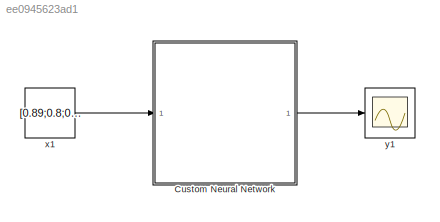
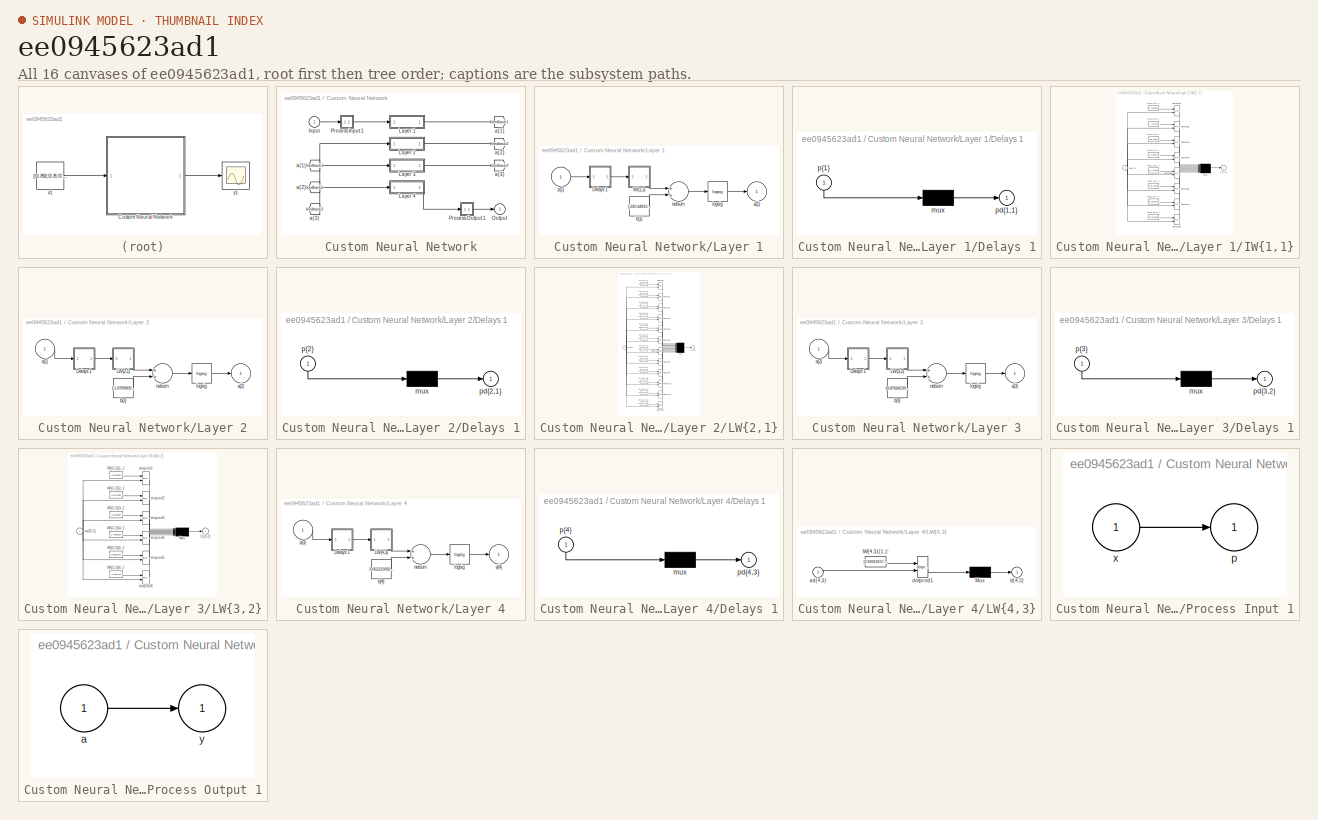
[diagram: thumbnail index - all 16 canvases of the model, root first then tree order]
MODEL slx_ee0945623ad1
KIND model
CONFIG AbsTol = auto
CONFIG FixedStep = auto
CONFIG MaxStep = auto
CONFIG MinStep = auto
CONFIG RelTol = 1e-3
CONFIG SampleTimeConstraint = Unconstrained
CONFIG Solver = VariableStepAuto
CONFIG SolverMode = Auto
CONFIG SolverName = VariableStepAuto
CONFIG StartTime = 0.0
CONFIG StopTime = 10.0
BLOCK [SubSystem] Custom Neural Network
  Ports = [1, 1]
  RequestExecContextInheritance = off
  Variant = off
BLOCK [From] Custom Neural Network/ a{1} 
  GotoTag = feedback1
BLOCK [From] Custom Neural Network/ a{2} 
  GotoTag = feedback2
BLOCK [From] Custom Neural Network/ a{3} 
  GotoTag = feedback3
BLOCK [Inport] Custom Neural Network/Input
  IconDisplay = Port number
  PortDimensions = 3
BLOCK [SubSystem] Custom Neural Network/Layer 1
  Ports = [1, 1]
  RequestExecContextInheritance = off
  Variant = off
BLOCK [SubSystem] Custom Neural Network/Layer 1/Delays 1
  Ports = [1, 1]
  RequestExecContextInheritance = off
  Variant = off
BLOCK [Mux] Custom Neural Network/Layer 1/Delays 1/mux
  Inputs = 1
  Ports = [1, 1]
BLOCK [Outport] Custom Neural Network/Layer 1/Delays 1/pd{1,1}
  IconDisplay = Port number
BLOCK [Inport] Custom Neural Network/Layer 1/Delays 1/p{1}
  IconDisplay = Port number
  PortDimensions = 3
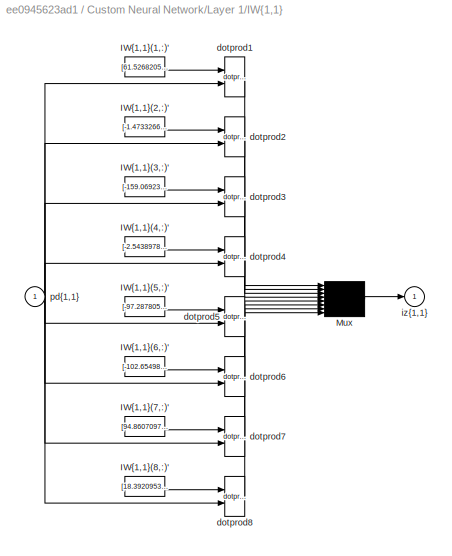
BLOCK [SubSystem] Custom Neural Network/Layer 1/IW{1,1}
  Ports = [1, 1]
  RequestExecContextInheritance = off
  Variant = off
BLOCK [Constant] Custom Neural Network/Layer 1/IW{1,1}/IW{1,1}(1,:)'
  Value = [61.526820548827821;63.251121261727079;7.0095536586086737]
BLOCK [Constant] Custom Neural Network/Layer 1/IW{1,1}/IW{1,1}(2,:)'
  Value = [-1.4733266156592695;26.360917469405571;29.064946161588765]
BLOCK [Constant] Custom Neural Network/Layer 1/IW{1,1}/IW{1,1}(3,:)'
  Value = [-159.06923164373561;17.653194609087425;2.9439221208622945]
BLOCK [Constant] Custom Neural Network/Layer 1/IW{1,1}/IW{1,1}(4,:)'
  Value = [-2.5438978141396698;70.615112491310413;-1.4516150804621986]
BLOCK [Constant] Custom Neural Network/Layer 1/IW{1,1}/IW{1,1}(5,:)'
  Value = [-97.287805807213132;44.331993070514685;15.599299557352101]
BLOCK [Constant] Custom Neural Network/Layer 1/IW{1,1}/IW{1,1}(6,:)'
  Value = [-102.65498229661196;48.502702023806947;-11.579703811891507]
BLOCK [Constant] Custom Neural Network/Layer 1/IW{1,1}/IW{1,1}(7,:)'
  Value = [94.860709755684908;-57.737684640410293;-0.019479715268472923]
BLOCK [Constant] Custom Neural Network/Layer 1/IW{1,1}/IW{1,1}(8,:)'
  Value = [18.392095352258636;47.505854145446015;23.654074037455413]
BLOCK [Mux] Custom Neural Network/Layer 1/IW{1,1}/Mux
  Inputs = 8
  Ports = [8, 1]
BLOCK [Reference] Custom Neural Network/Layer 1/IW{1,1}/dotprod1  REF=neural/Weight Functions/dotprod
  Ports = [2, 1]
  SourceBlock = neural/Weight Functions/dotprod
  SourceType = DOTPROD
BLOCK [Reference] Custom Neural Network/Layer 1/IW{1,1}/dotprod2  REF=neural/Weight Functions/dotprod
  Ports = [2, 1]
  SourceBlock = neural/Weight Functions/dotprod
  SourceType = DOTPROD
BLOCK [Reference] Custom Neural Network/Layer 1/IW{1,1}/dotprod3  REF=neural/Weight Functions/dotprod
  Ports = [2, 1]
  SourceBlock = neural/Weight Functions/dotprod
  SourceType = DOTPROD
BLOCK [Reference] Custom Neural Network/Layer 1/IW{1,1}/dotprod4  REF=neural/Weight Functions/dotprod
  Ports = [2, 1]
  SourceBlock = neural/Weight Functions/dotprod
  SourceType = DOTPROD
BLOCK [Reference] Custom Neural Network/Layer 1/IW{1,1}/dotprod5  REF=neural/Weight Functions/dotprod
  Ports = [2, 1]
  SourceBlock = neural/Weight Functions/dotprod
  SourceType = DOTPROD
BLOCK [Reference] Custom Neural Network/Layer 1/IW{1,1}/dotprod6  REF=neural/Weight Functions/dotprod
  Ports = [2, 1]
  SourceBlock = neural/Weight Functions/dotprod
  SourceType = DOTPROD
BLOCK [Reference] Custom Neural Network/Layer 1/IW{1,1}/dotprod7  REF=neural/Weight Functions/dotprod
  Ports = [2, 1]
  SourceBlock = neural/Weight Functions/dotprod
  SourceType = DOTPROD
BLOCK [Reference] Custom Neural Network/Layer 1/IW{1,1}/dotprod8  REF=neural/Weight Functions/dotprod
  Ports = [2, 1]
  SourceBlock = neural/Weight Functions/dotprod
  SourceType = DOTPROD
BLOCK [Outport] Custom Neural Network/Layer 1/IW{1,1}/iz{1,1}
  IconDisplay = Port number
BLOCK [Inport] Custom Neural Network/Layer 1/IW{1,1}/pd{1,1}
  IconDisplay = Port number
  PortDimensions = 3
BLOCK [Outport] Custom Neural Network/Layer 1/a{1}
  IconDisplay = Port number
  InitialOutput = [0;0;0;0;0;0;0;0]
BLOCK [Constant] Custom Neural Network/Layer 1/b{1}
  Value = [-310.44813426920274;-312.26227376567181;74.683860439908912;-187.35919428746837;-172.275832491063;49.743479689447028;86.601472062637427;-340.69877574579533]
BLOCK [Reference] Custom Neural Network/Layer 1/logsig  REF=neural/Transfer Functions/logsig
  Ports = [1, 1]
  SourceBlock = neural/Transfer Functions/logsig
  SourceType = LOGSIG
BLOCK [Sum] Custom Neural Network/Layer 1/netsum
  Inputs = 2
  Ports = [2, 1]
BLOCK [Inport] Custom Neural Network/Layer 1/p{1}
  IconDisplay = Port number
  PortDimensions = 3
BLOCK [SubSystem] Custom Neural Network/Layer 2
  Ports = [1, 1]
  RequestExecContextInheritance = off
  Variant = off
BLOCK [SubSystem] Custom Neural Network/Layer 2/Delays 1
  Ports = [1, 1]
  RequestExecContextInheritance = off
  Variant = off
BLOCK [Mux] Custom Neural Network/Layer 2/Delays 1/mux
  Inputs = 1
  Ports = [1, 1]
BLOCK [Outport] Custom Neural Network/Layer 2/Delays 1/pd{2,1}
  IconDisplay = Port number
BLOCK [Inport] Custom Neural Network/Layer 2/Delays 1/p{2}
  IconDisplay = Port number
  PortDimensions = 8
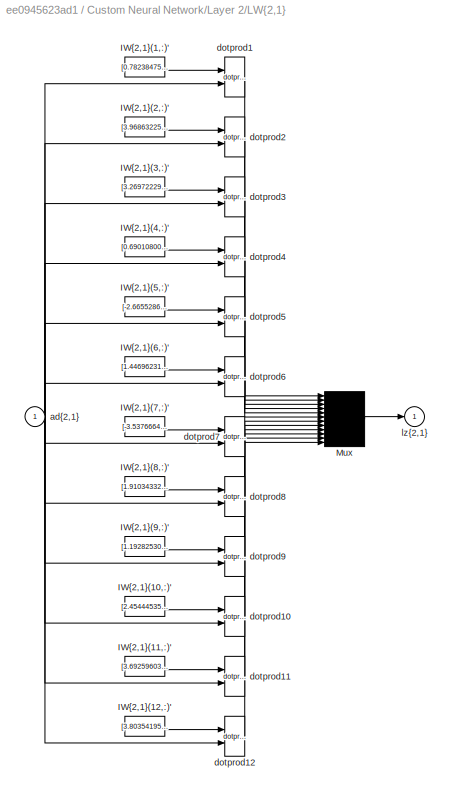
BLOCK [SubSystem] Custom Neural Network/Layer 2/LW{2,1}
  Ports = [1, 1]
  RequestExecContextInheritance = off
  Variant = off
BLOCK [Constant] Custom Neural Network/Layer 2/LW{2,1}/IW{2,1}(1,:)'
  Value = [0.78238475165044019;2.7297671487637976;-4.2585861743052522;-1.7358772282136485;0.62770309575647498;4.1787611690407935;-3.0779976300869873;-1.1299028611259441]
BLOCK [Constant] Custom Neural Network/Layer 2/LW{2,1}/IW{2,1}(10,:)'
  Value = [2.4544453574603895;-2.7219895635270395;-2.9238209306742231;4.4093954750571989;1.4354008706371766;0.50731798259414296;4.0817377434065873;0.83863922391056001]
BLOCK [Constant] Custom Neural Network/Layer 2/LW{2,1}/IW{2,1}(11,:)'
  Value = [3.6925960358567176;-0.2445148219092487;-6.2996295511549079;-2.9984482407679263;-0.42862835259482102;-3.6313357651050069;-0.085359575921152286;1.3886290889211286]
BLOCK [Constant] Custom Neural Network/Layer 2/LW{2,1}/IW{2,1}(12,:)'
  Value = [3.8035419591932338;1.0494077120396563;1.1092978679222825;-2.2745910829741134;-3.5069158630888309;-0.7592233636069694;2.8083196305904004;3.9644409081464582]
BLOCK [Constant] Custom Neural Network/Layer 2/LW{2,1}/IW{2,1}(2,:)'
  Value = [3.9686322504424743;0.89518417667602235;1.285010064682955;0.39896256738043528;1.5767525063335215;2.6118405382352585;-5.4747402739976003;-0.67288586770852676]
BLOCK [Constant] Custom Neural Network/Layer 2/LW{2,1}/IW{2,1}(3,:)'
  Value = [3.2697222976774034;3.8553756649906492;-1.7586180485329823;1.8003330737806167;1.496160288631595;2.1086650492678118;4.0465200737471241;-3.8619439640995958]
BLOCK [Constant] Custom Neural Network/Layer 2/LW{2,1}/IW{2,1}(4,:)'
  Value = [0.6901080023918521;0.62827610783998777;-4.2991945229506001;-0.15350521885567889;-2.9309958309703577;-4.2672564743295345;-2.0403859180531705;-3.2344375737164031]
BLOCK [Constant] Custom Neural Network/Layer 2/LW{2,1}/IW{2,1}(5,:)'
  Value = [-2.6655286345626124;-4.1769422491690174;1.8817131416604302;0.53399790631636745;4.8856407491944713;3.9296554424631918;-1.6410509130029494;1.7250922385044734]
BLOCK [Constant] Custom Neural Network/Layer 2/LW{2,1}/IW{2,1}(6,:)'
  Value = [1.4469623158719247;-3.8957131857766005;-2.9301198422209898;-0.96543457429145985;-3.9173160982856419;3.5815459019632003;-2.0049220597889956;-2.0240264449306169]
BLOCK [Constant] Custom Neural Network/Layer 2/LW{2,1}/IW{2,1}(7,:)'
  Value = [-3.5376664692436348;2.9653268032805578;-3.9587974612177419;-2.3244168353810299;-5.2274772413222204;3.8965316838632496;-0.14283433300534071;3.2268342763647797]
BLOCK [Constant] Custom Neural Network/Layer 2/LW{2,1}/IW{2,1}(8,:)'
  Value = [1.9103433262366432;0.14839956542213412;-5.0855188584768545;0.084771918965171861;-4.4448185703736298;4.0441765618156325;1.5739553184146173;-3.8949794555994028]
BLOCK [Constant] Custom Neural Network/Layer 2/LW{2,1}/IW{2,1}(9,:)'
  Value = [1.1928253085957095;2.5746089467246187;-2.6489559220228571;2.6523174845609239;-2.520058544217922;2.1060116507441351;-3.5131090713459385;3.6603682895916623]
BLOCK [Mux] Custom Neural Network/Layer 2/LW{2,1}/Mux
  Inputs = 12
  Ports = [12, 1]
BLOCK [Inport] Custom Neural Network/Layer 2/LW{2,1}/ad{2,1}
  IconDisplay = Port number
  PortDimensions = 8
BLOCK [Reference] Custom Neural Network/Layer 2/LW{2,1}/dotprod1  REF=neural/Weight Functions/dotprod
  Ports = [2, 1]
  SourceBlock = neural/Weight Functions/dotprod
  SourceType = DOTPROD
BLOCK [Reference] Custom Neural Network/Layer 2/LW{2,1}/dotprod10  REF=neural/Weight Functions/dotprod
  Ports = [2, 1]
  SourceBlock = neural/Weight Functions/dotprod
  SourceType = DOTPROD
BLOCK [Reference] Custom Neural Network/Layer 2/LW{2,1}/dotprod11  REF=neural/Weight Functions/dotprod
  Ports = [2, 1]
  SourceBlock = neural/Weight Functions/dotprod
  SourceType = DOTPROD
BLOCK [Reference] Custom Neural Network/Layer 2/LW{2,1}/dotprod12  REF=neural/Weight Functions/dotprod
  Ports = [2, 1]
  SourceBlock = neural/Weight Functions/dotprod
  SourceType = DOTPROD
BLOCK [Reference] Custom Neural Network/Layer 2/LW{2,1}/dotprod2  REF=neural/Weight Functions/dotprod
  Ports = [2, 1]
  SourceBlock = neural/Weight Functions/dotprod
  SourceType = DOTPROD
BLOCK [Reference] Custom Neural Network/Layer 2/LW{2,1}/dotprod3  REF=neural/Weight Functions/dotprod
  Ports = [2, 1]
  SourceBlock = neural/Weight Functions/dotprod
  SourceType = DOTPROD
BLOCK [Reference] Custom Neural Network/Layer 2/LW{2,1}/dotprod4  REF=neural/Weight Functions/dotprod
  Ports = [2, 1]
  SourceBlock = neural/Weight Functions/dotprod
  SourceType = DOTPROD
BLOCK [Reference] Custom Neural Network/Layer 2/LW{2,1}/dotprod5  REF=neural/Weight Functions/dotprod
  Ports = [2, 1]
  SourceBlock = neural/Weight Functions/dotprod
  SourceType = DOTPROD
BLOCK [Reference] Custom Neural Network/Layer 2/LW{2,1}/dotprod6  REF=neural/Weight Functions/dotprod
  Ports = [2, 1]
  SourceBlock = neural/Weight Functions/dotprod
  SourceType = DOTPROD
BLOCK [Reference] Custom Neural Network/Layer 2/LW{2,1}/dotprod7  REF=neural/Weight Functions/dotprod
  Ports = [2, 1]
  SourceBlock = neural/Weight Functions/dotprod
  SourceType = DOTPROD
BLOCK [Reference] Custom Neural Network/Layer 2/LW{2,1}/dotprod8  REF=neural/Weight Functions/dotprod
  Ports = [2, 1]
  SourceBlock = neural/Weight Functions/dotprod
  SourceType = DOTPROD
BLOCK [Reference] Custom Neural Network/Layer 2/LW{2,1}/dotprod9  REF=neural/Weight Functions/dotprod
  Ports = [2, 1]
  SourceBlock = neural/Weight Functions/dotprod
  SourceType = DOTPROD
BLOCK [Outport] Custom Neural Network/Layer 2/LW{2,1}/lz{2,1}
  IconDisplay = Port number
BLOCK [Inport] Custom Neural Network/Layer 2/a{1} 
  IconDisplay = Port number
  PortDimensions = 8
BLOCK [Outport] Custom Neural Network/Layer 2/a{2}
  IconDisplay = Port number
  InitialOutput = [0;0;0;0;0;0;0;0;0;0;0;0]
BLOCK [Constant] Custom Neural Network/Layer 2/b{2}
  Value = [-1.8789909838878895;-5.6385406861740597;-6.2135860824989857;5.4745826749263502;1.0323393606940965;3.3026240111636835;1.2820337379916418;3.3856694124773994;0.0070201084712022185;0.071970159120514618;3.5665718597691285;0.84942605224355949]
BLOCK [Reference] Custom Neural Network/Layer 2/logsig  REF=neural/Transfer Functions/logsig
  Ports = [1, 1]
  SourceBlock = neural/Transfer Functions/logsig
  SourceType = LOGSIG
BLOCK [Sum] Custom Neural Network/Layer 2/netsum
  Inputs = 2
  Ports = [2, 1]
BLOCK [SubSystem] Custom Neural Network/Layer 3
  Ports = [1, 1]
  RequestExecContextInheritance = off
  Variant = off
BLOCK [SubSystem] Custom Neural Network/Layer 3/Delays 1
  Ports = [1, 1]
  RequestExecContextInheritance = off
  Variant = off
BLOCK [Mux] Custom Neural Network/Layer 3/Delays 1/mux
  Inputs = 1
  Ports = [1, 1]
BLOCK [Outport] Custom Neural Network/Layer 3/Delays 1/pd{3,2}
  IconDisplay = Port number
BLOCK [Inport] Custom Neural Network/Layer 3/Delays 1/p{3}
  IconDisplay = Port number
  PortDimensions = 12
BLOCK [SubSystem] Custom Neural Network/Layer 3/LW{3,2}
  Ports = [1, 1]
  RequestExecContextInheritance = off
  Variant = off
BLOCK [Constant] Custom Neural Network/Layer 3/LW{3,2}/IW{3,2}(1,:)'
  Value = [-1.6531350813575776;-2.4928453226077996;-2.9022376141123787;1.8515482274147748;-2.7543293059845886;-0.48245527465602045;0.49512025552845296;-2.0867368353359601;-3.3906575081133732;-1.5003434580877468;0.41098299633542729;1.2299885521328955]
BLOCK [Constant] Custom Neural Network/Layer 3/LW{3,2}/IW{3,2}(2,:)'
  Value = [-0.5477050850070001;-0.88809000229281654;2.5735573560996499;1.4897331763001629;-1.4063866307023152;-3.0817853310448364;-2.1991549522067868;-2.8722208545306072;2.0481394162964266;-0.96947062482375201;0.053393139548748525;0.71376314371647187]
BLOCK [Constant] Custom Neural Network/Layer 3/LW{3,2}/IW{3,2}(3,:)'
  Value = [-0.21518821498016513;-2.7524165934699023;1.4957417945255966;0.44547282870163091;2.5539210504584364;2.4731480090401168;3.0242947706734244;0.1115809464396922;2.9767847036090394;1.9887440904742428;1.8849994656806934;-0.21621512563945466]
BLOCK [Constant] Custom Neural Network/Layer 3/LW{3,2}/IW{3,2}(4,:)'
  Value = [1.7766520851153347;0.25332786573942379;1.9962625700123897;-1.9682243321192425;-3.1124838086305529;-1.7195224733113936;-4.1187185672049766;3.8682753167692621;0.99979728080406782;-2.0996791594607234;3.6371959452222864;-1.904516841203018]
BLOCK [Constant] Custom Neural Network/Layer 3/LW{3,2}/IW{3,2}(5,:)'
  Value = [2.0061574220080036;-0.90058880696981447;3.932017160504218;0.60077704634445062;-1.4978433011068184;-2.4351415694738034;-3.7433098514177598;1.9905745946933684;-2.2493541305240026;-2.3889892096457492;2.4379815385175081;2.0561661939855238]
BLOCK [Constant] Custom Neural Network/Layer 3/LW{3,2}/IW{3,2}(6,:)'
  Value = [-2.3157773618363917;-1.8833886711903474;-2.2536912226712724;-1.1625385259485386;-2.4891762628610832;-1.1125313978397402;-2.326344787616776;-2.4393667721323178;2.0304054287942024;1.1015836746396814;-1.1775656430570947;-0.81306247991737823]
BLOCK [Mux] Custom Neural Network/Layer 3/LW{3,2}/Mux
  Inputs = 6
  Ports = [6, 1]
BLOCK [Inport] Custom Neural Network/Layer 3/LW{3,2}/ad{3,2}
  IconDisplay = Port number
  PortDimensions = 12
BLOCK [Reference] Custom Neural Network/Layer 3/LW{3,2}/dotprod1  REF=neural/Weight Functions/dotprod
  Ports = [2, 1]
  SourceBlock = neural/Weight Functions/dotprod
  SourceType = DOTPROD
BLOCK [Reference] Custom Neural Network/Layer 3/LW{3,2}/dotprod2  REF=neural/Weight Functions/dotprod
  Ports = [2, 1]
  SourceBlock = neural/Weight Functions/dotprod
  SourceType = DOTPROD
BLOCK [Reference] Custom Neural Network/Layer 3/LW{3,2}/dotprod3  REF=neural/Weight Functions/dotprod
  Ports = [2, 1]
  SourceBlock = neural/Weight Functions/dotprod
  SourceType = DOTPROD
BLOCK [Reference] Custom Neural Network/Layer 3/LW{3,2}/dotprod4  REF=neural/Weight Functions/dotprod
  Ports = [2, 1]
  SourceBlock = neural/Weight Functions/dotprod
  SourceType = DOTPROD
BLOCK [Reference] Custom Neural Network/Layer 3/LW{3,2}/dotprod5  REF=neural/Weight Functions/dotprod
  Ports = [2, 1]
  SourceBlock = neural/Weight Functions/dotprod
  SourceType = DOTPROD
BLOCK [Reference] Custom Neural Network/Layer 3/LW{3,2}/dotprod6  REF=neural/Weight Functions/dotprod
  Ports = [2, 1]
  SourceBlock = neural/Weight Functions/dotprod
  SourceType = DOTPROD
BLOCK [Outport] Custom Neural Network/Layer 3/LW{3,2}/lz{3,2}
  IconDisplay = Port number
BLOCK [Inport] Custom Neural Network/Layer 3/a{2} 
  IconDisplay = Port number
  PortDimensions = 12
BLOCK [Outport] Custom Neural Network/Layer 3/a{3}
  IconDisplay = Port number
  InitialOutput = [0;0;0;0;0;0]
BLOCK [Constant] Custom Neural Network/Layer 3/b{3}
  Value = [8.8768423942417858;5.655966005079752;-4.6438381771664261;6.032964755872757;3.3718657856384557;4.6452541761444373]
BLOCK [Reference] Custom Neural Network/Layer 3/logsig  REF=neural/Transfer Functions/logsig
  Ports = [1, 1]
  SourceBlock = neural/Transfer Functions/logsig
  SourceType = LOGSIG
BLOCK [Sum] Custom Neural Network/Layer 3/netsum
  Inputs = 2
  Ports = [2, 1]
BLOCK [SubSystem] Custom Neural Network/Layer 4
  Ports = [1, 1]
  RequestExecContextInheritance = off
  Variant = off
BLOCK [SubSystem] Custom Neural Network/Layer 4/Delays 1
  Ports = [1, 1]
  RequestExecContextInheritance = off
  Variant = off
BLOCK [Mux] Custom Neural Network/Layer 4/Delays 1/mux
  Inputs = 1
  Ports = [1, 1]
BLOCK [Outport] Custom Neural Network/Layer 4/Delays 1/pd{4,3}
  IconDisplay = Port number
BLOCK [Inport] Custom Neural Network/Layer 4/Delays 1/p{4}
  IconDisplay = Port number
  PortDimensions = 6
BLOCK [SubSystem] Custom Neural Network/Layer 4/LW{4,3}
  Ports = [1, 1]
  RequestExecContextInheritance = off
  Variant = off
BLOCK [Constant] Custom Neural Network/Layer 4/LW{4,3}/IW{4,3}(1,:)'
  Value = [2.6991815764514047;3.1764793312788355;-2.205397646583604;-10.02256996280939;-6.1791459034573988;0.73089960840350232]
BLOCK [Mux] Custom Neural Network/Layer 4/LW{4,3}/Mux
  Inputs = 1
  Ports = [1, 1]
BLOCK [Inport] Custom Neural Network/Layer 4/LW{4,3}/ad{4,3}
  IconDisplay = Port number
  PortDimensions = 6
BLOCK [Reference] Custom Neural Network/Layer 4/LW{4,3}/dotprod1  REF=neural/Weight Functions/dotprod
  Ports = [2, 1]
  SourceBlock = neural/Weight Functions/dotprod
  SourceType = DOTPROD
BLOCK [Outport] Custom Neural Network/Layer 4/LW{4,3}/lz{4,3}
  IconDisplay = Port number
BLOCK [Inport] Custom Neural Network/Layer 4/a{3} 
  IconDisplay = Port number
  PortDimensions = 6
BLOCK [Outport] Custom Neural Network/Layer 4/a{4}
  IconDisplay = Port number
  InitialOutput = 0
BLOCK [Constant] Custom Neural Network/Layer 4/b{4}
  Value = 3.0622130922900173
BLOCK [Reference] Custom Neural Network/Layer 4/logsig  REF=neural/Transfer Functions/logsig
  Ports = [1, 1]
  SourceBlock = neural/Transfer Functions/logsig
  SourceType = LOGSIG
BLOCK [Sum] Custom Neural Network/Layer 4/netsum
  Inputs = 2
  Ports = [2, 1]
BLOCK [Outport] Custom Neural Network/Output
  IconDisplay = Port number
  InitialOutput = 0
BLOCK [SubSystem] Custom Neural Network/Process Input 1
  Ports = [1, 1]
  RequestExecContextInheritance = off
  Variant = off
BLOCK [Outport] Custom Neural Network/Process Input 1/p
  IconDisplay = Port number
  PortDimensions = 3
BLOCK [Inport] Custom Neural Network/Process Input 1/x
  IconDisplay = Port number
  PortDimensions = 3
BLOCK [SubSystem] Custom Neural Network/Process Output 1
  Ports = [1, 1]
  RequestExecContextInheritance = off
  Variant = off
BLOCK [Inport] Custom Neural Network/Process Output 1/a
  IconDisplay = Port number
  PortDimensions = 1
BLOCK [Outport] Custom Neural Network/Process Output 1/y
  IconDisplay = Port number
  PortDimensions = 1
BLOCK [Goto] Custom Neural Network/a{1}
  GotoTag = feedback1
BLOCK [Goto] Custom Neural Network/a{2}
  GotoTag = feedback2
BLOCK [Goto] Custom Neural Network/a{3}
  GotoTag = feedback3
BLOCK [Constant] x1
  SampleTime = 1
  Value = [0.89;0.8;0.73]
BLOCK [Scope] y1
  Ports = [1]
LINE Custom Neural Network/ a{1} :1 -> Custom Neural Network/Layer 2:1
LINE Custom Neural Network/ a{2} :1 -> Custom Neural Network/Layer 3:1
LINE Custom Neural Network/ a{3} :1 -> Custom Neural Network/Layer 4:1
LINE Custom Neural Network/Input:1 -> Custom Neural Network/Process Input 1:1
LINE Custom Neural Network/Layer 1/Delays 1/mux:1 -> Custom Neural Network/Layer 1/Delays 1/pd{1,1}:1
LINE Custom Neural Network/Layer 1/Delays 1/p{1}:1 -> Custom Neural Network/Layer 1/Delays 1/mux:1
LINE Custom Neural Network/Layer 1/Delays 1:1 -> Custom Neural Network/Layer 1/IW{1,1}:1
LINE Custom Neural Network/Layer 1/IW{1,1}/IW{1,1}(1,:)':1 -> Custom Neural Network/Layer 1/IW{1,1}/dotprod1:1
LINE Custom Neural Network/Layer 1/IW{1,1}/IW{1,1}(2,:)':1 -> Custom Neural Network/Layer 1/IW{1,1}/dotprod2:1
LINE Custom Neural Network/Layer 1/IW{1,1}/IW{1,1}(3,:)':1 -> Custom Neural Network/Layer 1/IW{1,1}/dotprod3:1
LINE Custom Neural Network/Layer 1/IW{1,1}/IW{1,1}(4,:)':1 -> Custom Neural Network/Layer 1/IW{1,1}/dotprod4:1
LINE Custom Neural Network/Layer 1/IW{1,1}/IW{1,1}(5,:)':1 -> Custom Neural Network/Layer 1/IW{1,1}/dotprod5:1
LINE Custom Neural Network/Layer 1/IW{1,1}/IW{1,1}(6,:)':1 -> Custom Neural Network/Layer 1/IW{1,1}/dotprod6:1
LINE Custom Neural Network/Layer 1/IW{1,1}/IW{1,1}(7,:)':1 -> Custom Neural Network/Layer 1/IW{1,1}/dotprod7:1
LINE Custom Neural Network/Layer 1/IW{1,1}/IW{1,1}(8,:)':1 -> Custom Neural Network/Layer 1/IW{1,1}/dotprod8:1
LINE Custom Neural Network/Layer 1/IW{1,1}/Mux:1 -> Custom Neural Network/Layer 1/IW{1,1}/iz{1,1}:1
LINE Custom Neural Network/Layer 1/IW{1,1}/dotprod1:1 -> Custom Neural Network/Layer 1/IW{1,1}/Mux:1
LINE Custom Neural Network/Layer 1/IW{1,1}/dotprod2:1 -> Custom Neural Network/Layer 1/IW{1,1}/Mux:2
LINE Custom Neural Network/Layer 1/IW{1,1}/dotprod3:1 -> Custom Neural Network/Layer 1/IW{1,1}/Mux:3
LINE Custom Neural Network/Layer 1/IW{1,1}/dotprod4:1 -> Custom Neural Network/Layer 1/IW{1,1}/Mux:4
LINE Custom Neural Network/Layer 1/IW{1,1}/dotprod5:1 -> Custom Neural Network/Layer 1/IW{1,1}/Mux:5
LINE Custom Neural Network/Layer 1/IW{1,1}/dotprod6:1 -> Custom Neural Network/Layer 1/IW{1,1}/Mux:6
LINE Custom Neural Network/Layer 1/IW{1,1}/dotprod7:1 -> Custom Neural Network/Layer 1/IW{1,1}/Mux:7
LINE Custom Neural Network/Layer 1/IW{1,1}/dotprod8:1 -> Custom Neural Network/Layer 1/IW{1,1}/Mux:8
NET Custom Neural Network/Layer 1/IW{1,1}/pd{1,1}:1 -> Custom Neural Network/Layer 1/IW{1,1}/dotprod1:2, Custom Neural Network/Layer 1/IW{1,1}/dotprod2:2, Custom Neural Network/Layer 1/IW{1,1}/dotprod3:2, Custom Neural Network/Layer 1/IW{1,1}/dotprod4:2, Custom Neural Network/Layer 1/IW{1,1}/dotprod5:2, Custom Neural Network/Layer 1/IW{1,1}/dotprod6:2, Custom Neural Network/Layer 1/IW{1,1}/dotprod7:2, Custom Neural Network/Layer 1/IW{1,1}/dotprod8:2
LINE Custom Neural Network/Layer 1/IW{1,1}:1 -> Custom Neural Network/Layer 1/netsum:1
LINE Custom Neural Network/Layer 1/b{1}:1 -> Custom Neural Network/Layer 1/netsum:2
LINE Custom Neural Network/Layer 1/logsig:1 -> Custom Neural Network/Layer 1/a{1}:1
LINE Custom Neural Network/Layer 1/netsum:1 -> Custom Neural Network/Layer 1/logsig:1
LINE Custom Neural Network/Layer 1/p{1}:1 -> Custom Neural Network/Layer 1/Delays 1:1
LINE Custom Neural Network/Layer 1:1 -> Custom Neural Network/a{1}:1
LINE Custom Neural Network/Layer 2/Delays 1/mux:1 -> Custom Neural Network/Layer 2/Delays 1/pd{2,1}:1
LINE Custom Neural Network/Layer 2/Delays 1/p{2}:1 -> Custom Neural Network/Layer 2/Delays 1/mux:1
LINE Custom Neural Network/Layer 2/Delays 1:1 -> Custom Neural Network/Layer 2/LW{2,1}:1
LINE Custom Neural Network/Layer 2/LW{2,1}/IW{2,1}(1,:)':1 -> Custom Neural Network/Layer 2/LW{2,1}/dotprod1:1
LINE Custom Neural Network/Layer 2/LW{2,1}/IW{2,1}(10,:)':1 -> Custom Neural Network/Layer 2/LW{2,1}/dotprod10:1
LINE Custom Neural Network/Layer 2/LW{2,1}/IW{2,1}(11,:)':1 -> Custom Neural Network/Layer 2/LW{2,1}/dotprod11:1
LINE Custom Neural Network/Layer 2/LW{2,1}/IW{2,1}(12,:)':1 -> Custom Neural Network/Layer 2/LW{2,1}/dotprod12:1
LINE Custom Neural Network/Layer 2/LW{2,1}/IW{2,1}(2,:)':1 -> Custom Neural Network/Layer 2/LW{2,1}/dotprod2:1
LINE Custom Neural Network/Layer 2/LW{2,1}/IW{2,1}(3,:)':1 -> Custom Neural Network/Layer 2/LW{2,1}/dotprod3:1
LINE Custom Neural Network/Layer 2/LW{2,1}/IW{2,1}(4,:)':1 -> Custom Neural Network/Layer 2/LW{2,1}/dotprod4:1
LINE Custom Neural Network/Layer 2/LW{2,1}/IW{2,1}(5,:)':1 -> Custom Neural Network/Layer 2/LW{2,1}/dotprod5:1
LINE Custom Neural Network/Layer 2/LW{2,1}/IW{2,1}(6,:)':1 -> Custom Neural Network/Layer 2/LW{2,1}/dotprod6:1
LINE Custom Neural Network/Layer 2/LW{2,1}/IW{2,1}(7,:)':1 -> Custom Neural Network/Layer 2/LW{2,1}/dotprod7:1
LINE Custom Neural Network/Layer 2/LW{2,1}/IW{2,1}(8,:)':1 -> Custom Neural Network/Layer 2/LW{2,1}/dotprod8:1
LINE Custom Neural Network/Layer 2/LW{2,1}/IW{2,1}(9,:)':1 -> Custom Neural Network/Layer 2/LW{2,1}/dotprod9:1
LINE Custom Neural Network/Layer 2/LW{2,1}/Mux:1 -> Custom Neural Network/Layer 2/LW{2,1}/lz{2,1}:1
NET Custom Neural Network/Layer 2/LW{2,1}/ad{2,1}:1 -> Custom Neural Network/Layer 2/LW{2,1}/dotprod10:2, Custom Neural Network/Layer 2/LW{2,1}/dotprod11:2, Custom Neural Network/Layer 2/LW{2,1}/dotprod12:2, Custom Neural Network/Layer 2/LW{2,1}/dotprod1:2, Custom Neural Network/Layer 2/LW{2,1}/dotprod2:2, Custom Neural Network/Layer 2/LW{2,1}/dotprod3:2, Custom Neural Network/Layer 2/LW{2,1}/dotprod4:2, Custom Neural Network/Layer 2/LW{2,1}/dotprod5:2, Custom Neural Network/Layer 2/LW{2,1}/dotprod6:2, Custom Neural Network/Layer 2/LW{2,1}/dotprod7:2, Custom Neural Network/Layer 2/LW{2,1}/dotprod8:2, Custom Neural Network/Layer 2/LW{2,1}/dotprod9:2
LINE Custom Neural Network/Layer 2/LW{2,1}/dotprod10:1 -> Custom Neural Network/Layer 2/LW{2,1}/Mux:10
LINE Custom Neural Network/Layer 2/LW{2,1}/dotprod11:1 -> Custom Neural Network/Layer 2/LW{2,1}/Mux:11
LINE Custom Neural Network/Layer 2/LW{2,1}/dotprod12:1 -> Custom Neural Network/Layer 2/LW{2,1}/Mux:12
LINE Custom Neural Network/Layer 2/LW{2,1}/dotprod1:1 -> Custom Neural Network/Layer 2/LW{2,1}/Mux:1
LINE Custom Neural Network/Layer 2/LW{2,1}/dotprod2:1 -> Custom Neural Network/Layer 2/LW{2,1}/Mux:2
LINE Custom Neural Network/Layer 2/LW{2,1}/dotprod3:1 -> Custom Neural Network/Layer 2/LW{2,1}/Mux:3
LINE Custom Neural Network/Layer 2/LW{2,1}/dotprod4:1 -> Custom Neural Network/Layer 2/LW{2,1}/Mux:4
LINE Custom Neural Network/Layer 2/LW{2,1}/dotprod5:1 -> Custom Neural Network/Layer 2/LW{2,1}/Mux:5
LINE Custom Neural Network/Layer 2/LW{2,1}/dotprod6:1 -> Custom Neural Network/Layer 2/LW{2,1}/Mux:6
LINE Custom Neural Network/Layer 2/LW{2,1}/dotprod7:1 -> Custom Neural Network/Layer 2/LW{2,1}/Mux:7
LINE Custom Neural Network/Layer 2/LW{2,1}/dotprod8:1 -> Custom Neural Network/Layer 2/LW{2,1}/Mux:8
LINE Custom Neural Network/Layer 2/LW{2,1}/dotprod9:1 -> Custom Neural Network/Layer 2/LW{2,1}/Mux:9
LINE Custom Neural Network/Layer 2/LW{2,1}:1 -> Custom Neural Network/Layer 2/netsum:1
LINE Custom Neural Network/Layer 2/a{1} :1 -> Custom Neural Network/Layer 2/Delays 1:1
LINE Custom Neural Network/Layer 2/b{2}:1 -> Custom Neural Network/Layer 2/netsum:2
LINE Custom Neural Network/Layer 2/logsig:1 -> Custom Neural Network/Layer 2/a{2}:1
LINE Custom Neural Network/Layer 2/netsum:1 -> Custom Neural Network/Layer 2/logsig:1
LINE Custom Neural Network/Layer 2:1 -> Custom Neural Network/a{2}:1
LINE Custom Neural Network/Layer 3/Delays 1/mux:1 -> Custom Neural Network/Layer 3/Delays 1/pd{3,2}:1
LINE Custom Neural Network/Layer 3/Delays 1/p{3}:1 -> Custom Neural Network/Layer 3/Delays 1/mux:1
LINE Custom Neural Network/Layer 3/Delays 1:1 -> Custom Neural Network/Layer 3/LW{3,2}:1
LINE Custom Neural Network/Layer 3/LW{3,2}/IW{3,2}(1,:)':1 -> Custom Neural Network/Layer 3/LW{3,2}/dotprod1:1
LINE Custom Neural Network/Layer 3/LW{3,2}/IW{3,2}(2,:)':1 -> Custom Neural Network/Layer 3/LW{3,2}/dotprod2:1
LINE Custom Neural Network/Layer 3/LW{3,2}/IW{3,2}(3,:)':1 -> Custom Neural Network/Layer 3/LW{3,2}/dotprod3:1
LINE Custom Neural Network/Layer 3/LW{3,2}/IW{3,2}(4,:)':1 -> Custom Neural Network/Layer 3/LW{3,2}/dotprod4:1
LINE Custom Neural Network/Layer 3/LW{3,2}/IW{3,2}(5,:)':1 -> Custom Neural Network/Layer 3/LW{3,2}/dotprod5:1
LINE Custom Neural Network/Layer 3/LW{3,2}/IW{3,2}(6,:)':1 -> Custom Neural Network/Layer 3/LW{3,2}/dotprod6:1
LINE Custom Neural Network/Layer 3/LW{3,2}/Mux:1 -> Custom Neural Network/Layer 3/LW{3,2}/lz{3,2}:1
NET Custom Neural Network/Layer 3/LW{3,2}/ad{3,2}:1 -> Custom Neural Network/Layer 3/LW{3,2}/dotprod1:2, Custom Neural Network/Layer 3/LW{3,2}/dotprod2:2, Custom Neural Network/Layer 3/LW{3,2}/dotprod3:2, Custom Neural Network/Layer 3/LW{3,2}/dotprod4:2, Custom Neural Network/Layer 3/LW{3,2}/dotprod5:2, Custom Neural Network/Layer 3/LW{3,2}/dotprod6:2
LINE Custom Neural Network/Layer 3/LW{3,2}/dotprod1:1 -> Custom Neural Network/Layer 3/LW{3,2}/Mux:1
LINE Custom Neural Network/Layer 3/LW{3,2}/dotprod2:1 -> Custom Neural Network/Layer 3/LW{3,2}/Mux:2
LINE Custom Neural Network/Layer 3/LW{3,2}/dotprod3:1 -> Custom Neural Network/Layer 3/LW{3,2}/Mux:3
LINE Custom Neural Network/Layer 3/LW{3,2}/dotprod4:1 -> Custom Neural Network/Layer 3/LW{3,2}/Mux:4
LINE Custom Neural Network/Layer 3/LW{3,2}/dotprod5:1 -> Custom Neural Network/Layer 3/LW{3,2}/Mux:5
LINE Custom Neural Network/Layer 3/LW{3,2}/dotprod6:1 -> Custom Neural Network/Layer 3/LW{3,2}/Mux:6
LINE Custom Neural Network/Layer 3/LW{3,2}:1 -> Custom Neural Network/Layer 3/netsum:1
LINE Custom Neural Network/Layer 3/a{2} :1 -> Custom Neural Network/Layer 3/Delays 1:1
LINE Custom Neural Network/Layer 3/b{3}:1 -> Custom Neural Network/Layer 3/netsum:2
LINE Custom Neural Network/Layer 3/logsig:1 -> Custom Neural Network/Layer 3/a{3}:1
LINE Custom Neural Network/Layer 3/netsum:1 -> Custom Neural Network/Layer 3/logsig:1
LINE Custom Neural Network/Layer 3:1 -> Custom Neural Network/a{3}:1
LINE Custom Neural Network/Layer 4/Delays 1/mux:1 -> Custom Neural Network/Layer 4/Delays 1/pd{4,3}:1
LINE Custom Neural Network/Layer 4/Delays 1/p{4}:1 -> Custom Neural Network/Layer 4/Delays 1/mux:1
LINE Custom Neural Network/Layer 4/Delays 1:1 -> Custom Neural Network/Layer 4/LW{4,3}:1
LINE Custom Neural Network/Layer 4/LW{4,3}/IW{4,3}(1,:)':1 -> Custom Neural Network/Layer 4/LW{4,3}/dotprod1:1
LINE Custom Neural Network/Layer 4/LW{4,3}/Mux:1 -> Custom Neural Network/Layer 4/LW{4,3}/lz{4,3}:1
LINE Custom Neural Network/Layer 4/LW{4,3}/ad{4,3}:1 -> Custom Neural Network/Layer 4/LW{4,3}/dotprod1:2
LINE Custom Neural Network/Layer 4/LW{4,3}/dotprod1:1 -> Custom Neural Network/Layer 4/LW{4,3}/Mux:1
LINE Custom Neural Network/Layer 4/LW{4,3}:1 -> Custom Neural Network/Layer 4/netsum:1
LINE Custom Neural Network/Layer 4/a{3} :1 -> Custom Neural Network/Layer 4/Delays 1:1
LINE Custom Neural Network/Layer 4/b{4}:1 -> Custom Neural Network/Layer 4/netsum:2
LINE Custom Neural Network/Layer 4/logsig:1 -> Custom Neural Network/Layer 4/a{4}:1
LINE Custom Neural Network/Layer 4/netsum:1 -> Custom Neural Network/Layer 4/logsig:1
LINE Custom Neural Network/Layer 4:1 -> Custom Neural Network/Process Output 1:1
LINE Custom Neural Network/Process Input 1/x:1 -> Custom Neural Network/Process Input 1/p:1
LINE Custom Neural Network/Process Input 1:1 -> Custom Neural Network/Layer 1:1
LINE Custom Neural Network/Process Output 1/a:1 -> Custom Neural Network/Process Output 1/y:1
LINE Custom Neural Network/Process Output 1:1 -> Custom Neural Network/Output:1
LINE Custom Neural Network:1 -> y1:1
LINE x1:1 -> Custom Neural Network:1
note: NET lines group one-source signal fan-out (src -> all destinations, sorted); 1:1 wires keep LINE
